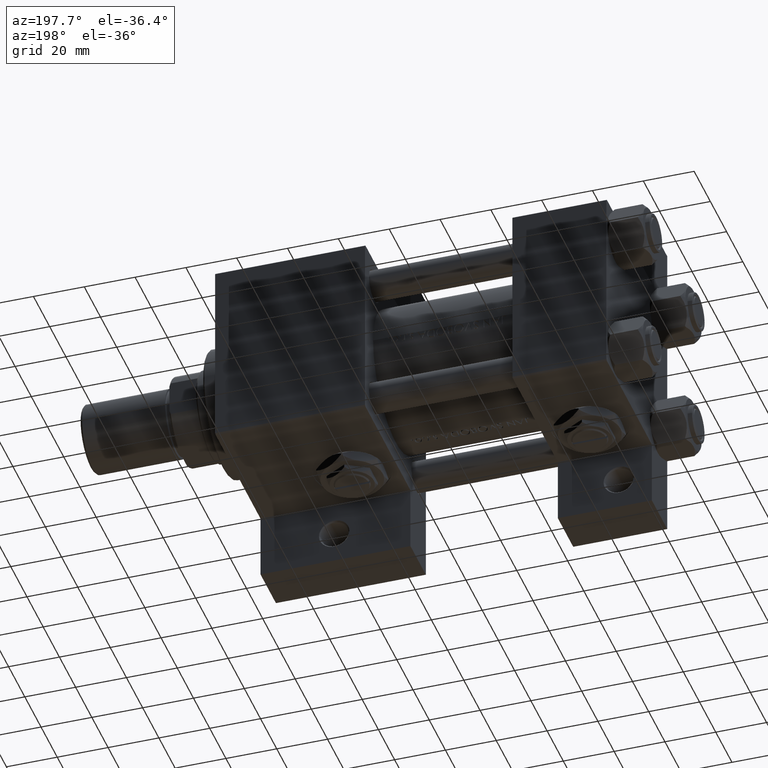
[diagram: clean part render]
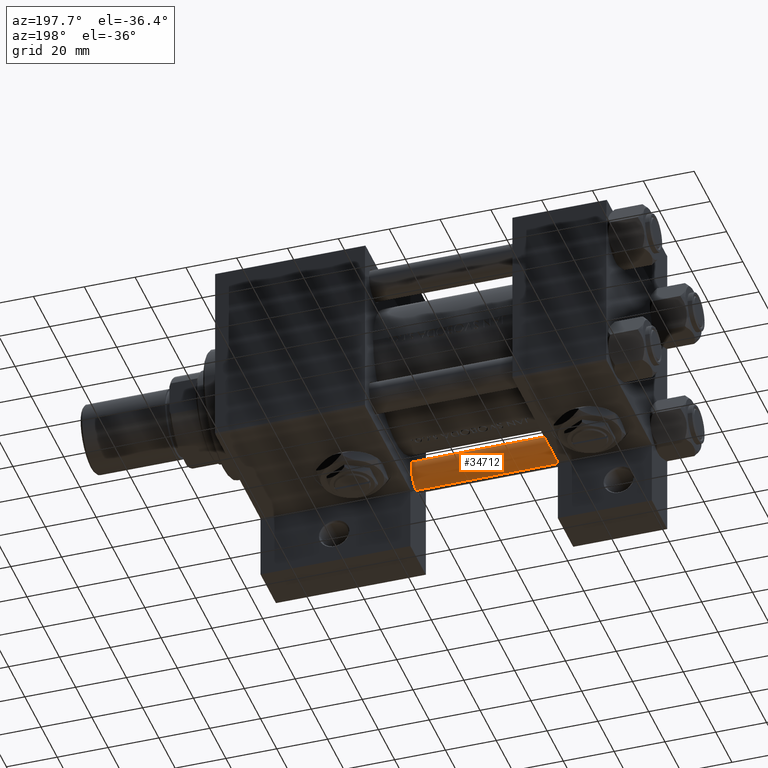
[diagram: same view with one face highlighted and labeled with its STEP entity id]
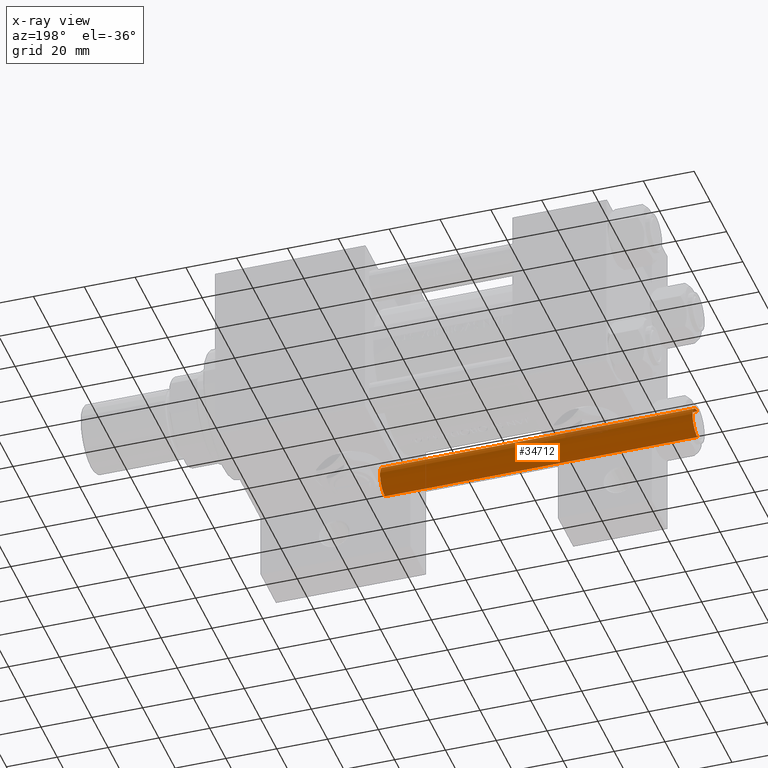
[diagram: x-ray of the same camera — body ghosted, the highlighted face saturated]
A machine part, auxiliary view. The second image highlights one B-rep face of the part: STEP entity #34712.
The next image is the same camera in x-ray: the body ghosted, the highlighted face saturated — about 4% of this face is hidden behind the body in this view.
In plain terms, the highlighted cylindrical surface (edge-blend (fillet) strip) has radius 6 mm, axis along (-1, 0, 0).
Its self-contained STEP definition (entity closure, byte-faithful):
#838 = DIRECTION ( 'NONE',  ( -0.000000000000000000, -0.000000000000000000, -1.000000000000000000 ) ) ;
#4195 = VECTOR ( 'NONE', #838, 1000.000000000000000 ) ;
#4903 = DIRECTION ( 'NONE',  ( 1.000000000000000000, 0.000000000000000000, 0.000000000000000000 ) ) ;
#6050 = CYLINDRICAL_SURFACE ( 'NONE', #25476, 6.000000000000000888 ) ;
#7144 = DIRECTION ( 'NONE',  ( 0.000000000000000000, 0.000000000000000000, -1.000000000000000000 ) ) ;
#7340 = ORIENTED_EDGE ( 'NONE', *, *, #21890, .T. ) ;
#9338 = CARTESIAN_POINT ( 'NONE',  ( 0.000000000000000000, 0.000000000000000000, 124.0000000000000000 ) ) ;
#9823 = AXIS2_PLACEMENT_3D ( 'NONE', #30884, #7144, #22546 ) ;
#13077 = ORIENTED_EDGE ( 'NONE', *, *, #38723, .F. ) ;
#17181 = VERTEX_POINT ( 'NONE', #38052 ) ;
#19117 = VERTEX_POINT ( 'NONE', #29113 ) ;
#19541 = DIRECTION ( 'NONE',  ( -0.000000000000000000, -0.000000000000000000, 1.000000000000000000 ) ) ;
#20698 = DIRECTION ( 'NONE',  ( -0.000000000000000000, -0.000000000000000000, -1.000000000000000000 ) ) ;
#21890 = EDGE_CURVE ( 'NONE', #36950, #17181, #31612, .T. ) ;
#22032 = VERTEX_POINT ( 'NONE', #28607 ) ;
#22546 = DIRECTION ( 'NONE',  ( 1.000000000000000000, 0.000000000000000000, 0.000000000000000000 ) ) ;
#23722 = CARTESIAN_POINT ( 'NONE',  ( 6.000000000000000888, 7.347880794884120722E-16, 124.0000000000000000 ) ) ;
#23998 = VECTOR ( 'NONE', #39186, 1000.000000000000000 ) ;
#24328 = ORIENTED_EDGE ( 'NONE', *, *, #35112, .T. ) ;
#25476 = AXIS2_PLACEMENT_3D ( 'NONE', #9338, #20698, #48540 ) ;
#26870 = CARTESIAN_POINT ( 'NONE',  ( -6.000000000000000888, 0.000000000000000000, 124.0000000000000000 ) ) ;
#28607 = CARTESIAN_POINT ( 'NONE',  ( -6.000000000000000888, 0.000000000000000000, 0.4999999999999865663 ) ) ;
#29113 = CARTESIAN_POINT ( 'NONE',  ( 6.000000000000000888, 7.347880794884120722E-16, 0.4999999999999865663 ) ) ;
#30884 = CARTESIAN_POINT ( 'NONE',  ( 0.000000000000000000, 0.000000000000000000, 123.5000000000000426 ) ) ;
#31612 = CIRCLE ( 'NONE', #9823, 6.000000000000000888 ) ;
#32126 = ORIENTED_EDGE ( 'NONE', *, *, #44150, .T. ) ;
#34712 = ADVANCED_FACE ( 'NONE', ( #43747 ), #6050, .T. ) ;
#35112 = EDGE_CURVE ( 'NONE', #22032, #19117, #38461, .T. ) ;
#35259 = CARTESIAN_POINT ( 'NONE',  ( 0.000000000000000000, 0.000000000000000000, 0.4999999999999865663 ) ) ;
#35489 = LINE ( 'NONE', #26870, #4195 ) ;
#36950 = VERTEX_POINT ( 'NONE', #43386 ) ;
#38052 = CARTESIAN_POINT ( 'NONE',  ( -6.000000000000000888, 0.000000000000000000, 123.5000000000000426 ) ) ;
#38461 = CIRCLE ( 'NONE', #41709, 6.000000000000000888 ) ;
#38723 = EDGE_CURVE ( 'NONE', #36950, #19117, #46262, .T. ) ;
#39186 = DIRECTION ( 'NONE',  ( -0.000000000000000000, -0.000000000000000000, -1.000000000000000000 ) ) ;
#41709 = AXIS2_PLACEMENT_3D ( 'NONE', #35259, #19541, #4903 ) ;
#43386 = CARTESIAN_POINT ( 'NONE',  ( 6.000000000000000888, 7.347880794884120722E-16, 123.5000000000000426 ) ) ;
#43747 = FACE_OUTER_BOUND ( 'NONE', #48262, .T. ) ;
#44150 = EDGE_CURVE ( 'NONE', #17181, #22032, #35489, .T. ) ;
#46262 = LINE ( 'NONE', #23722, #23998 ) ;
#48262 = EDGE_LOOP ( 'NONE', ( #13077, #7340, #32126, #24328 ) ) ;
#48540 = DIRECTION ( 'NONE',  ( -1.000000000000000000, 0.000000000000000000, 0.000000000000000000 ) ) ;